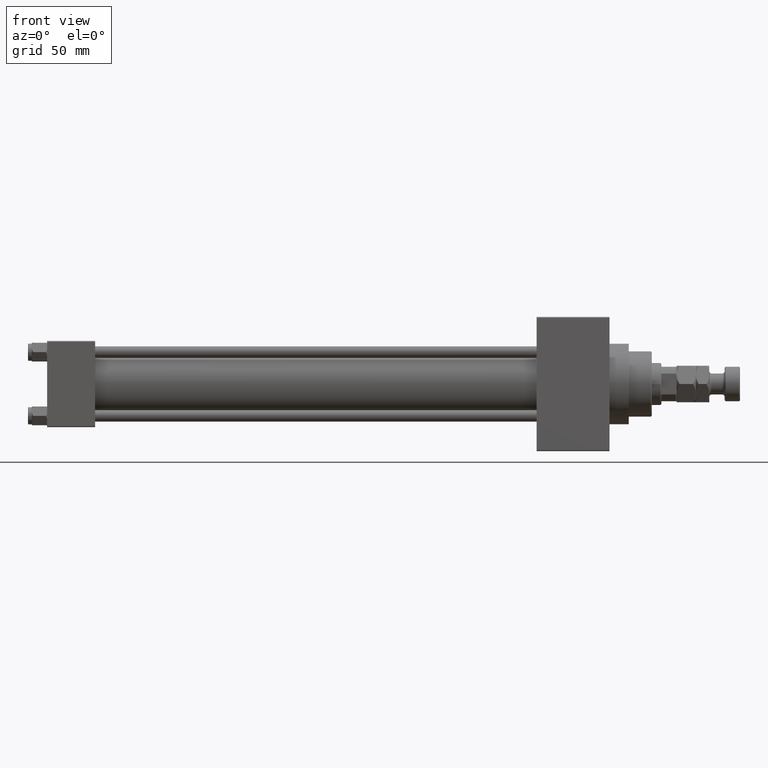
[diagram: clean part render]
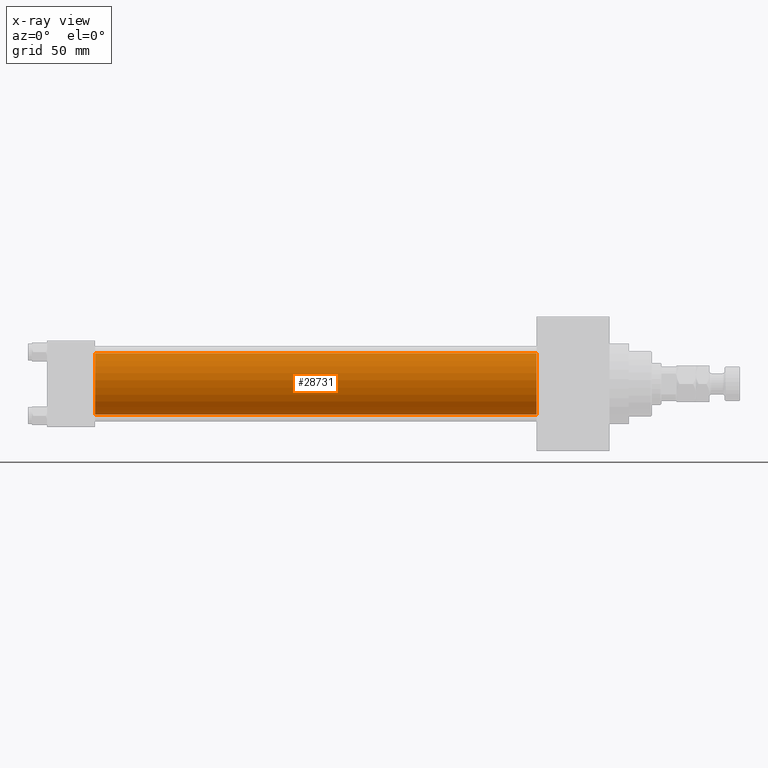
[diagram: x-ray — body ghosted, one internal face saturated and labeled with its STEP entity id]
A machine part, front view, then the same camera in x-ray: the body is ghosted and one INTERNAL B-rep face — a face not visible from any outside direction — is saturated and labeled: STEP entity #28731.
In plain terms, the highlighted cylindrical surface (edge-blend (fillet) strip) has radius 16 mm, axis along (-1, -0, -0).
Its self-contained STEP definition (entity closure, byte-faithful):
#194 = CARTESIAN_POINT ( 'NONE',  ( 25.00000000000000000, -2.602085213965210642E-15, 16.00000000000000000 ) ) ;
#741 = DIRECTION ( 'NONE',  ( 0.000000000000000000, 0.000000000000000000, -1.000000000000000000 ) ) ;
#4762 = LINE ( 'NONE', #20672, #27138 ) ;
#4827 = ORIENTED_EDGE ( 'NONE', *, *, #45800, .T. ) ;
#5263 = DIRECTION ( 'NONE',  ( -1.000000000000000000, -0.000000000000000000, -0.000000000000000000 ) ) ;
#5755 = EDGE_CURVE ( 'NONE', #35975, #13954, #4762, .T. ) ;
#7701 = CIRCLE ( 'NONE', #36415, 16.00000000000000000 ) ;
#11488 = CYLINDRICAL_SURFACE ( 'NONE', #42644, 16.00000000000000000 ) ;
#13459 = ORIENTED_EDGE ( 'NONE', *, *, #45913, .T. ) ;
#13954 = VERTEX_POINT ( 'NONE', #194 ) ;
#14530 = EDGE_LOOP ( 'NONE', ( #13459, #4827, #50677, #29004 ) ) ;
#14968 = AXIS2_PLACEMENT_3D ( 'NONE', #39763, #43618, #741 ) ;
#15090 = CARTESIAN_POINT ( 'NONE',  ( 255.0000000000000000, -2.602085213965210642E-15, 0.000000000000000000 ) ) ;
#16937 = LINE ( 'NONE', #17185, #29042 ) ;
#17185 = CARTESIAN_POINT ( 'NONE',  ( 255.0000000000000000, -6.426503353294456087E-16, -16.00000000000000000 ) ) ;
#18976 = CARTESIAN_POINT ( 'NONE',  ( 255.0000000000000000, -2.602085213965210642E-15, 0.000000000000000000 ) ) ;
#20672 = CARTESIAN_POINT ( 'NONE',  ( 255.0000000000000000, -2.602085213965210642E-15, 16.00000000000000000 ) ) ;
#23065 = DIRECTION ( 'NONE',  ( 0.000000000000000000, 0.000000000000000000, 1.000000000000000000 ) ) ;
#27082 = CARTESIAN_POINT ( 'NONE',  ( 255.0000000000000000, -2.602085213965210642E-15, 16.00000000000000000 ) ) ;
#27138 = VECTOR ( 'NONE', #5263, 1000.000000000000000 ) ;
#28731 = ADVANCED_FACE ( 'NONE', ( #45683 ), #11488, .F. ) ;
#29004 = ORIENTED_EDGE ( 'NONE', *, *, #5755, .F. ) ;
#29042 = VECTOR ( 'NONE', #44183, 1000.000000000000000 ) ;
#29778 = DIRECTION ( 'NONE',  ( 0.000000000000000000, 0.000000000000000000, -1.000000000000000000 ) ) ;
#31473 = VERTEX_POINT ( 'NONE', #41687 ) ;
#33629 = VERTEX_POINT ( 'NONE', #43755 ) ;
#35975 = VERTEX_POINT ( 'NONE', #27082 ) ;
#36415 = AXIS2_PLACEMENT_3D ( 'NONE', #18976, #45963, #29778 ) ;
#37974 = DIRECTION ( 'NONE',  ( -1.000000000000000000, -0.000000000000000000, -0.000000000000000000 ) ) ;
#38610 = EDGE_CURVE ( 'NONE', #13954, #31473, #46167, .T. ) ;
#39763 = CARTESIAN_POINT ( 'NONE',  ( 25.00000000000000000, -2.602085213965210642E-15, 0.000000000000000000 ) ) ;
#41687 = CARTESIAN_POINT ( 'NONE',  ( 25.00000000000000000, -6.426503353294456087E-16, -16.00000000000000000 ) ) ;
#42644 = AXIS2_PLACEMENT_3D ( 'NONE', #15090, #37974, #23065 ) ;
#43618 = DIRECTION ( 'NONE',  ( 1.000000000000000000, 0.000000000000000000, 0.000000000000000000 ) ) ;
#43755 = CARTESIAN_POINT ( 'NONE',  ( 255.0000000000000000, -6.426503353294456087E-16, -16.00000000000000000 ) ) ;
#44183 = DIRECTION ( 'NONE',  ( -1.000000000000000000, -0.000000000000000000, -0.000000000000000000 ) ) ;
#45683 = FACE_OUTER_BOUND ( 'NONE', #14530, .T. ) ;
#45800 = EDGE_CURVE ( 'NONE', #33629, #31473, #16937, .T. ) ;
#45913 = EDGE_CURVE ( 'NONE', #35975, #33629, #7701, .T. ) ;
#45963 = DIRECTION ( 'NONE',  ( 1.000000000000000000, 0.000000000000000000, 0.000000000000000000 ) ) ;
#46167 = CIRCLE ( 'NONE', #14968, 16.00000000000000000 ) ;
#50677 = ORIENTED_EDGE ( 'NONE', *, *, #38610, .F. ) ;